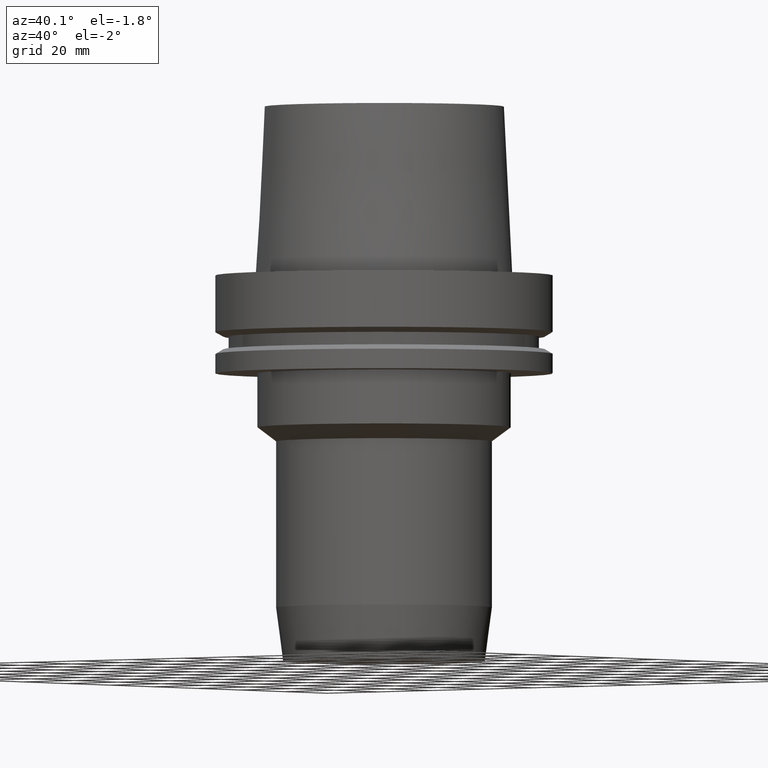
[diagram: clean part render]
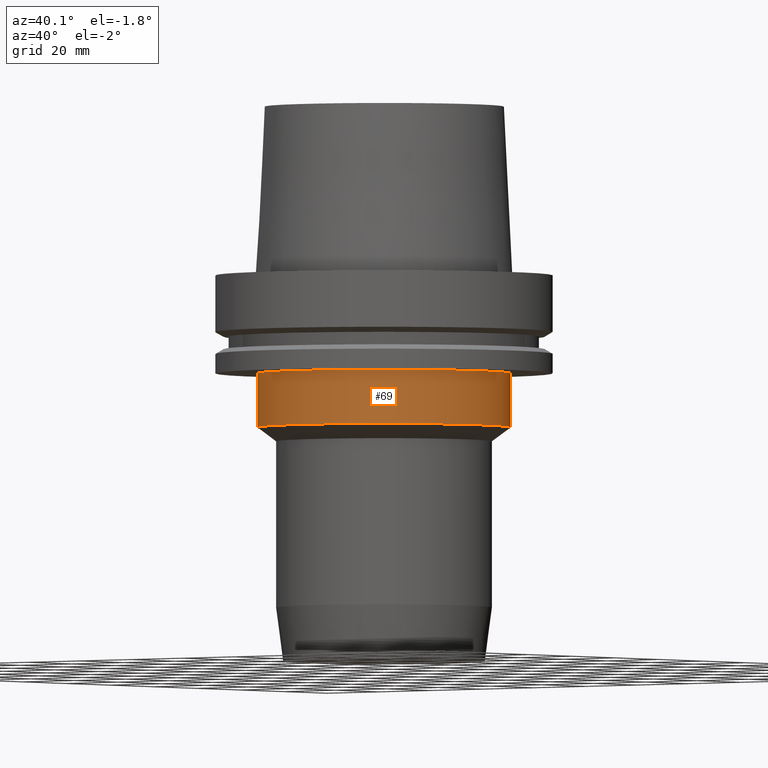
[diagram: same view with one face highlighted and labeled with its STEP entity id]
A machine part, auxiliary view. The second image highlights one B-rep face of the part: STEP entity #69.
In plain terms, the highlighted cylindrical surface (bore or boss wall) has radius 37.5 mm, axis along (0, 0, -1).
Its self-contained STEP definition (entity closure, byte-faithful):
#69=ADVANCED_FACE('Unnamed[1]',(#173,#174),#175,.T.);
#71=EDGE_CURVE('Unnamed[1]',#177,#177,#178,.T.);
#79=EDGE_CURVE('Unnamed[1]',#189,#189,#190,.T.);
#173=FACE_BOUND('',#310,.T.);
#174=FACE_BOUND('',#311,.T.);
#175=CYLINDRICAL_SURFACE('',#312,37.5);
#177=VERTEX_POINT('',#315);
#178=CIRCLE('',#316,37.5000000000001);
#189=VERTEX_POINT('',#330);
#190=CIRCLE('',#331,37.5);
#310=EDGE_LOOP('',(#466));
#311=EDGE_LOOP('',(#467));
#312=AXIS2_PLACEMENT_3D('',#468,#469,#470);
#315=CARTESIAN_POINT('',(2.75545529808154E-015,37.5000000000001,-45.0));
#316=AXIS2_PLACEMENT_3D('',#471,#472,#473);
#330=CARTESIAN_POINT('',(1.77573785876366E-015,37.5,-29.0));
#331=AXIS2_PLACEMENT_3D('',#485,#486,#487);
#466=ORIENTED_EDGE('',*,*,#71,.F.);
#467=ORIENTED_EDGE('',*,*,#79,.T.);
#468=CARTESIAN_POINT('',(2.2655965784226E-015,4.53119315684521E-015,-37.0));
#469=DIRECTION('',(6.12323399573676E-017,1.22464679914735E-016,-1.0));
#470=DIRECTION('',(-1.23259516440783E-032,1.0,1.22464679914735E-016));
#471=CARTESIAN_POINT('',(2.75545529808154E-015,5.51091059616309E-015,-45.0));
#472=DIRECTION('',(6.12323399573677E-017,1.22464679914735E-016,-1.0));
#473=DIRECTION('',(-1.23259516440783E-032,1.0,1.22464679914735E-016));
#485=CARTESIAN_POINT('',(1.77573785876366E-015,3.55147571752733E-015,-29.0));
#486=DIRECTION('',(6.12323399573676E-017,1.22464679914735E-016,-1.0));
#487=DIRECTION('',(-1.23259516440783E-032,1.0,1.22464679914735E-016));